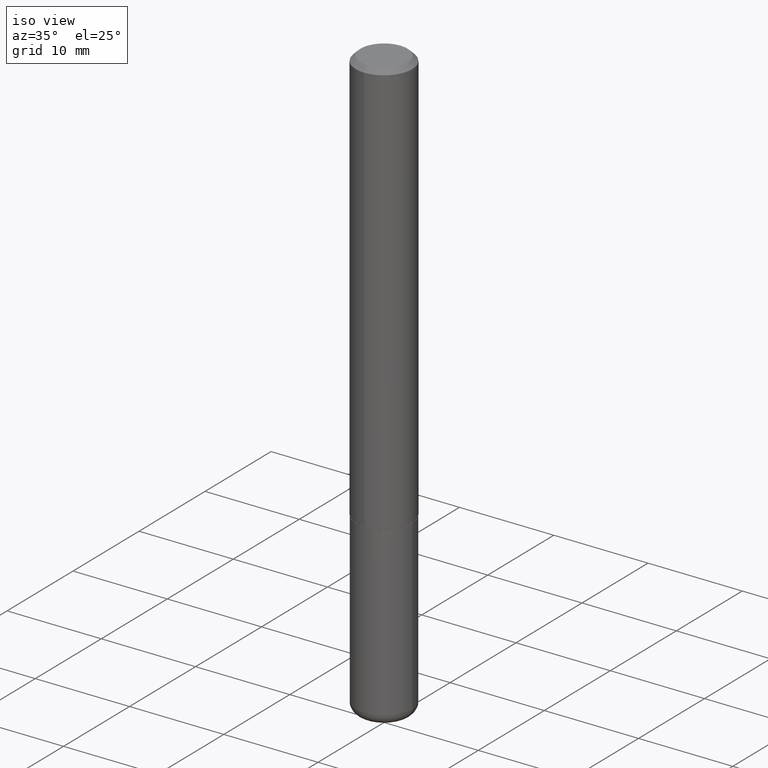
[diagram: clean part render]
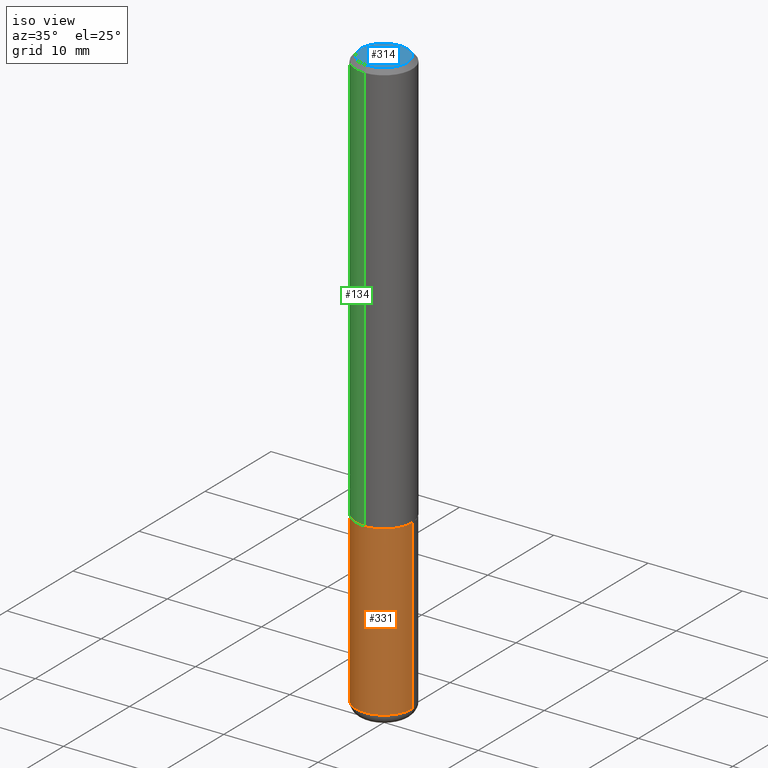
[diagram: same view with three faces highlighted in distinct colors, each labeled with its STEP entity id]
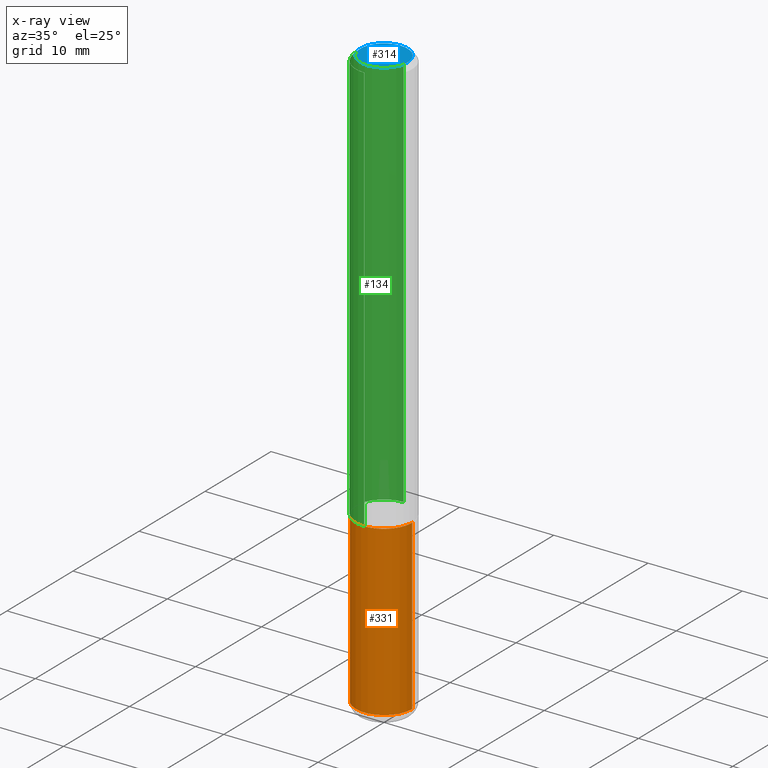
[diagram: x-ray of the same camera — body ghosted, the three highlighted faces saturated]
A machine part, iso view with three faces highlighted in distinct colors.
The next image is the same camera in x-ray (body ghosted, the three faces saturated) — at least one of them is partly hidden behind the body in this view.
Their STEP definitions:

[orange] entity #331 — the highlighted cylindrical surface (edge-blend (fillet) strip) has radius 2.9997 mm, axis along (-0, 0, 1).
#18 = LINE ( 'NONE', #238, #270 ) ;
#44 = AXIS2_PLACEMENT_3D ( 'NONE', #327, #318, #323 ) ;
#49 = CARTESIAN_POINT ( 'NONE',  ( 0.1181000000000001632, -9.327841544853347056E-15, -2.435400000000000453 ) ) ;
#50 = EDGE_CURVE ( 'NONE', #348, #61, #399, .T. ) ;
#61 = VERTEX_POINT ( 'NONE', #355 ) ;
#65 = DIRECTION ( 'NONE',  ( 1.000000000000000000, -6.982962677686265133E-15, 0.000000000000000000 ) ) ;
#71 = AXIS2_PLACEMENT_3D ( 'NONE', #376, #214, #88 ) ;
#87 = VECTOR ( 'NONE', #369, 39.37007874015748143 ) ;
#88 = DIRECTION ( 'NONE',  ( 1.000000000000000000, -6.982962677686273021E-15, 0.000000000000000000 ) ) ;
#102 = VERTEX_POINT ( 'NONE', #357 ) ;
#112 = LINE ( 'NONE', #137, #87 ) ;
#115 = CIRCLE ( 'NONE', #71, 0.1180999999999999966 ) ;
#118 = DIRECTION ( 'NONE',  ( -2.445468806185136877E-29, 3.491481338843145188E-15, 1.000000000000000000 ) ) ;
#126 = CARTESIAN_POINT ( 'NONE',  ( -0.1180999999999999966, -6.436572417015612133E-15, -1.732300000000000173 ) ) ;
#137 = CARTESIAN_POINT ( 'NONE',  ( 0.1180999999999999966, -8.246878922347480654E-16, 5.758764772215000440E-30 ) ) ;
#151 = EDGE_CURVE ( 'NONE', #414, #61, #112, .T. ) ;
#164 = FACE_OUTER_BOUND ( 'NONE', #291, .T. ) ;
#214 = DIRECTION ( 'NONE',  ( -2.445468806185136597E-29, 3.491481338843145583E-15, 1.000000000000000000 ) ) ;
#231 = CYLINDRICAL_SURFACE ( 'NONE', #44, 0.1180999999999999966 ) ;
#238 = CARTESIAN_POINT ( 'NONE',  ( -0.1180999999999999966, 8.391509709326782957E-16, -5.809262341591043784E-30 ) ) ;
#250 = DIRECTION ( 'NONE',  ( -2.445468806185136597E-29, 3.491481338843145583E-15, 1.000000000000000000 ) ) ;
#254 = ORIENTED_EDGE ( 'NONE', *, *, #293, .T. ) ;
#256 = ORIENTED_EDGE ( 'NONE', *, *, #272, .F. ) ;
#270 = VECTOR ( 'NONE', #118, 39.37007874015748143 ) ;
#272 = EDGE_CURVE ( 'NONE', #102, #348, #18, .T. ) ;
#291 = EDGE_LOOP ( 'NONE', ( #256, #254, #354, #360 ) ) ;
#293 = EDGE_CURVE ( 'NONE', #102, #414, #115, .T. ) ;
#303 = AXIS2_PLACEMENT_3D ( 'NONE', #380, #250, #65 ) ;
#318 = DIRECTION ( 'NONE',  ( -2.445468806185136597E-29, 3.491481338843145583E-15, 1.000000000000000000 ) ) ;
#323 = DIRECTION ( 'NONE',  ( 1.000000000000000000, -6.982962677686266711E-15, 4.876176775795936353E-29 ) ) ;
#327 = CARTESIAN_POINT ( 'NONE',  ( 0.000000000000000000, 0.000000000000000000, 0.000000000000000000 ) ) ;
#331 = ADVANCED_FACE ( 'NONE', ( #164 ), #231, .T. ) ;
#348 = VERTEX_POINT ( 'NONE', #126 ) ;
#354 = ORIENTED_EDGE ( 'NONE', *, *, #151, .T. ) ;
#355 = CARTESIAN_POINT ( 'NONE',  ( 0.1180999999999999966, -6.872981015512730130E-15, -1.732300000000000173 ) ) ;
#357 = CARTESIAN_POINT ( 'NONE',  ( -0.1181000000000001632, -7.664002681685918229E-15, -2.435400000000000453 ) ) ;
#360 = ORIENTED_EDGE ( 'NONE', *, *, #50, .F. ) ;
#369 = DIRECTION ( 'NONE',  ( -2.445468806185136877E-29, 3.491481338843145188E-15, 1.000000000000000000 ) ) ;
#376 = CARTESIAN_POINT ( 'NONE',  ( 5.955694730583282706E-29, -8.503153652618598793E-15, -2.435400000000000453 ) ) ;
#380 = CARTESIAN_POINT ( 'NONE',  ( 4.236285612954512953E-29, -6.048293123277982656E-15, -1.732300000000000173 ) ) ;
#399 = CIRCLE ( 'NONE', #303, 0.1180999999999999966 ) ;
#414 = VERTEX_POINT ( 'NONE', #49 ) ;

[blue] entity #314 — the highlighted planar face has unit normal (0, -0, -1).
#15 = CIRCLE ( 'NONE', #241, 0.09809999999999993725 ) ;
#23 = CARTESIAN_POINT ( 'NONE',  ( -2.808359658214252321E-45, 3.995216392424341374E-31, 1.146337419935401982E-16 ) ) ;
#25 = VERTEX_POINT ( 'NONE', #322 ) ;
#35 = DIRECTION ( 'NONE',  ( 6.982962677686265922E-15, 1.000000000000000000, -3.485201061175756670E-15 ) ) ;
#38 = EDGE_LOOP ( 'NONE', ( #153, #130 ) ) ;
#51 = CARTESIAN_POINT ( 'NONE',  ( -2.808359658214252321E-45, 3.995216392424341374E-31, 1.146337419935401982E-16 ) ) ;
#121 = FACE_OUTER_BOUND ( 'NONE', #38, .T. ) ;
#130 = ORIENTED_EDGE ( 'NONE', *, *, #196, .T. ) ;
#136 = AXIS2_PLACEMENT_3D ( 'NONE', #51, #176, #305 ) ;
#148 = DIRECTION ( 'NONE',  ( -2.449854300640825243E-29, 3.485201061175756275E-15, 1.000000000000000000 ) ) ;
#153 = ORIENTED_EDGE ( 'NONE', *, *, #265, .T. ) ;
#176 = DIRECTION ( 'NONE',  ( -2.449854300640825243E-29, 3.485201061175756275E-15, 1.000000000000000000 ) ) ;
#189 = VERTEX_POINT ( 'NONE', #206 ) ;
#196 = EDGE_CURVE ( 'NONE', #25, #189, #340, .T. ) ;
#206 = CARTESIAN_POINT ( 'NONE',  ( 7.548582654578854574E-16, 0.09809999999999993725, -2.272644821078012847E-16 ) ) ;
#234 = CARTESIAN_POINT ( 'NONE',  ( 6.850286386810222579E-16, 0.09809999999999993725, -2.845813531045713469E-16 ) ) ;
#241 = AXIS2_PLACEMENT_3D ( 'NONE', #23, #148, #275 ) ;
#245 = PLANE ( 'NONE',  #417 ) ;
#265 = EDGE_CURVE ( 'NONE', #189, #25, #15, .T. ) ;
#275 = DIRECTION ( 'NONE',  ( -6.982962677686265922E-15, -1.000000000000000000, 3.485201061175755486E-15 ) ) ;
#305 = DIRECTION ( 'NONE',  ( -6.982962677686265922E-15, -1.000000000000000000, 3.485201061175755486E-15 ) ) ;
#314 = ADVANCED_FACE ( 'NONE', ( #121 ), #245, .F. ) ;
#322 = CARTESIAN_POINT ( 'NONE',  ( -7.416198335591022079E-16, -0.09809999999999993725, 4.565319660948817305E-16 ) ) ;
#340 = CIRCLE ( 'NONE', #136, 0.09809999999999993725 ) ;
#381 = DIRECTION ( 'NONE',  ( 2.449854300640824683E-29, -3.485201061175756670E-15, -1.000000000000000000 ) ) ;
#417 = AXIS2_PLACEMENT_3D ( 'NONE', #234, #381, #35 ) ;

[green] entity #134 — the highlighted cylindrical surface (edge-blend (fillet) strip) has radius 2.9997 mm, axis along (-0, 0, 1).
#3 = EDGE_CURVE ( 'NONE', #177, #330, #373, .T. ) ;
#31 = CARTESIAN_POINT ( 'NONE',  ( 4.899708601281666006E-31, -6.970402122351533307E-17, -0.02000000000000006287 ) ) ;
#33 = EDGE_CURVE ( 'NONE', #316, #177, #240, .T. ) ;
#70 = AXIS2_PLACEMENT_3D ( 'NONE', #183, #244, #377 ) ;
#95 = DIRECTION ( 'NONE',  ( -2.449854300640825243E-29, 3.485201061175756275E-15, 1.000000000000000000 ) ) ;
#114 = CARTESIAN_POINT ( 'NONE',  ( -8.246878922347070446E-16, -0.1181000000000062417, -1.731299999999999617 ) ) ;
#120 = DIRECTION ( 'NONE',  ( -6.982962677686265922E-15, -1.000000000000000000, 3.485201061175756670E-15 ) ) ;
#134 = ADVANCED_FACE ( 'NONE', ( #149 ), #277, .T. ) ;
#145 = CARTESIAN_POINT ( 'NONE',  ( -8.246878922347489529E-16, -0.1181000000000001354, 4.116022453248573214E-16 ) ) ;
#146 = AXIS2_PLACEMENT_3D ( 'NONE', #409, #95, #120 ) ;
#149 = FACE_OUTER_BOUND ( 'NONE', #312, .T. ) ;
#172 = DIRECTION ( 'NONE',  ( -2.449854300640825243E-29, 3.485201061175756670E-15, 1.000000000000000000 ) ) ;
#177 = VERTEX_POINT ( 'NONE', #114 ) ;
#183 = CARTESIAN_POINT ( 'NONE',  ( 4.241432750699461520E-29, -6.033928597213587157E-15, -1.731300000000000283 ) ) ;
#191 = DIRECTION ( 'NONE',  ( -6.982962677686265922E-15, -1.000000000000000000, 3.469747663417776213E-15 ) ) ;
#193 = ORIENTED_EDGE ( 'NONE', *, *, #353, .F. ) ;
#201 = AXIS2_PLACEMENT_3D ( 'NONE', #31, #284, #191 ) ;
#220 = CARTESIAN_POINT ( 'NONE',  ( -8.102248135368175393E-16, -0.1181000000000001077, -0.01999999999999965347 ) ) ;
#230 = CARTESIAN_POINT ( 'NONE',  ( 8.391509709326791832E-16, 0.1181000000000001354, -4.116022453248573214E-16 ) ) ;
#232 = VECTOR ( 'NONE', #271, 39.37007874015748143 ) ;
#240 = CIRCLE ( 'NONE', #70, 0.1181000000000002187 ) ;
#244 = DIRECTION ( 'NONE',  ( -2.449854300640825243E-29, 3.485201061175756275E-15, 1.000000000000000000 ) ) ;
#263 = LINE ( 'NONE', #230, #344 ) ;
#266 = ORIENTED_EDGE ( 'NONE', *, *, #3, .T. ) ;
#271 = DIRECTION ( 'NONE',  ( -2.449854300640825243E-29, 3.485201061175756670E-15, 1.000000000000000000 ) ) ;
#277 = CYLINDRICAL_SURFACE ( 'NONE', #146, 0.1181000000000001354 ) ;
#284 = DIRECTION ( 'NONE',  ( -2.449854300640825243E-29, 3.485201061175756275E-15, 1.000000000000000000 ) ) ;
#304 = CIRCLE ( 'NONE', #201, 0.1181000000000000383 ) ;
#312 = EDGE_LOOP ( 'NONE', ( #329, #391, #266, #193 ) ) ;
#316 = VERTEX_POINT ( 'NONE', #324 ) ;
#321 = VERTEX_POINT ( 'NONE', #387 ) ;
#324 = CARTESIAN_POINT ( 'NONE',  ( 8.391509709327008768E-16, 0.1180999999999941957, -1.731300000000000727 ) ) ;
#329 = ORIENTED_EDGE ( 'NONE', *, *, #415, .F. ) ;
#330 = VERTEX_POINT ( 'NONE', #220 ) ;
#344 = VECTOR ( 'NONE', #172, 39.37007874015748143 ) ;
#353 = EDGE_CURVE ( 'NONE', #321, #330, #304, .T. ) ;
#373 = LINE ( 'NONE', #145, #232 ) ;
#377 = DIRECTION ( 'NONE',  ( -6.982962677686265922E-15, -1.000000000000000000, 4.626330217890360659E-15 ) ) ;
#387 = CARTESIAN_POINT ( 'NONE',  ( 8.246878922347486570E-16, 0.1180999999999999689, -0.02000000000000047226 ) ) ;
#391 = ORIENTED_EDGE ( 'NONE', *, *, #33, .T. ) ;
#409 = CARTESIAN_POINT ( 'NONE',  ( 0.000000000000000000, 0.000000000000000000, 0.000000000000000000 ) ) ;
#415 = EDGE_CURVE ( 'NONE', #316, #321, #263, .T. ) ;